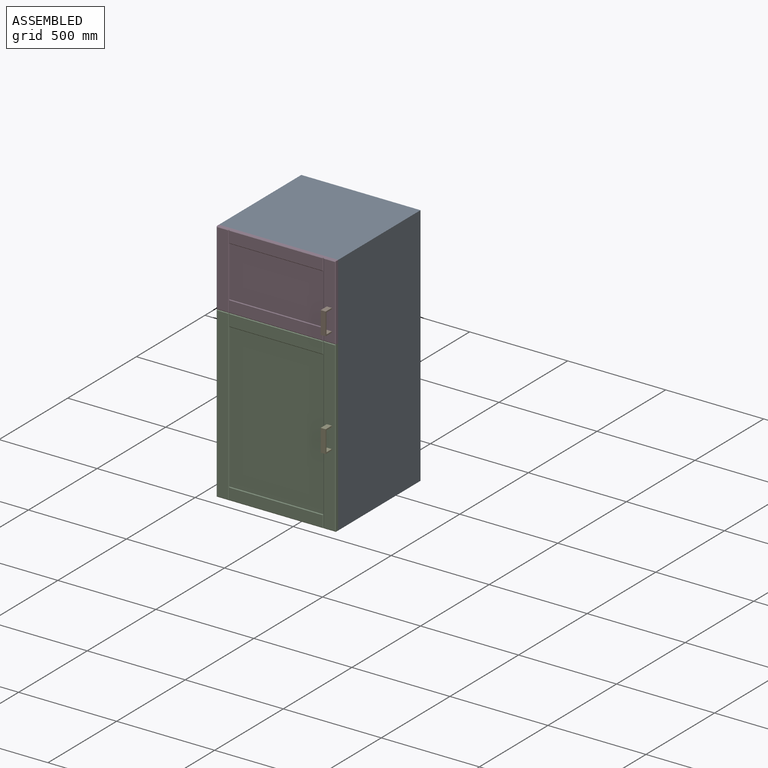
[diagram: assembled view]
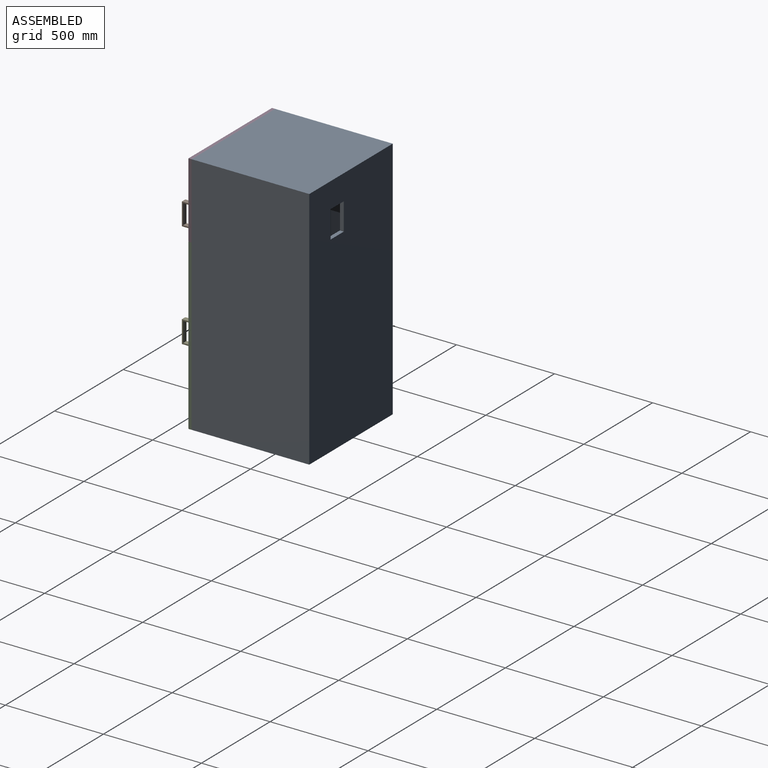
[diagram: assembled view, second angle]
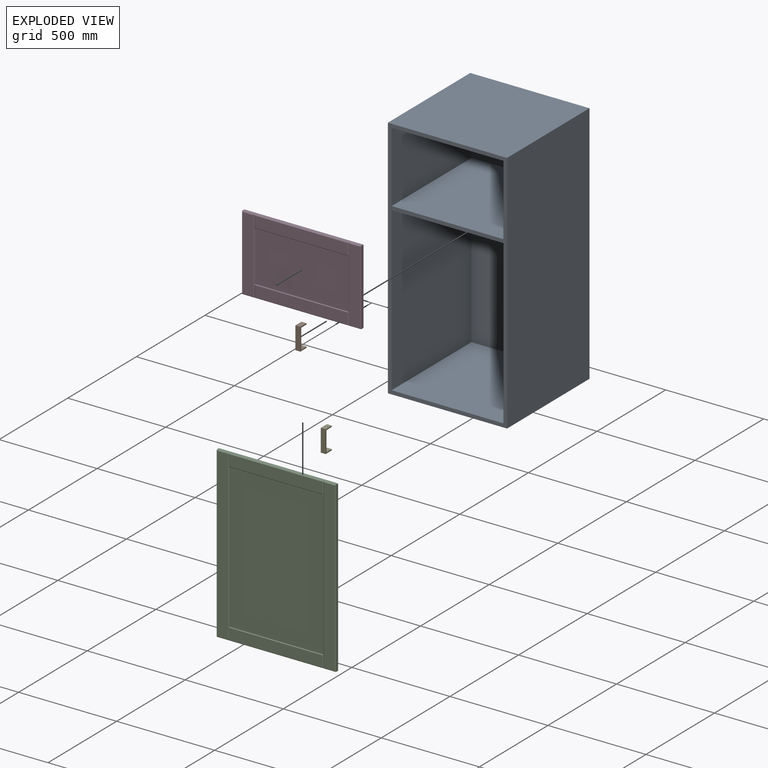
[diagram: exploded view]
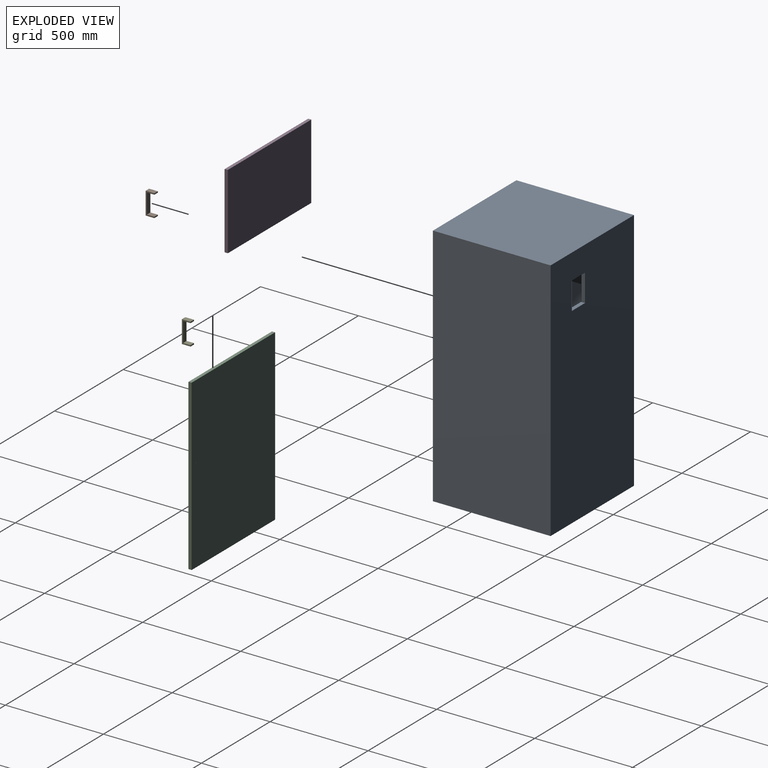
[diagram: exploded view, second angle]
ASSEMBLY  parts=5 mates=4
PART A: 20 faces, bbox 608x600.1x1247.8 mm
  f0: plane 569.91x360.36mm, normal (0,-1,0), area 192068.7mm2, adj f2,f3,f9,f15,f16,f17,f18,f19
  f1: plane 1247.78x608.01mm, normal (0,1,0), area 745356.4mm2, adj f5,f6,f7,f8,f16,f17,f18,f19
  f2: plane 581.03x360.36mm, normal (1,0,0), area 209379.6mm2, adj f0,f4,f9,f15
  f3: plane 581.03x360.36mm, normal (-1,0,0), area 209379.6mm2, adj f0,f4,f9,f15
  f4: plane 1247.78x608.01mm, normal (0,-1,0), area 80110.7mm2, adj f2,f3,f5,f6,f7,f8,f9,f10
  f5: plane 608.01x600.08mm, normal (0,0,1), area 364853.1mm2, adj f1,f4,f6,f8
  f6: plane 1247.78x600.08mm, normal (-1,0,0), area 748758.6mm2, adj f1,f4,f5,f7
  f7: plane 608.01x600.08mm, normal (0,0,-1), area 364853.1mm2, adj f1,f4,f6,f8
  f8: plane 1247.78x600.08mm, normal (1,0,0), area 748758.6mm2, adj f1,f4,f5,f7
  f9: plane 581.03x569.91mm, normal (0,0,-1), area 331133.4mm2, adj f0,f2,f3,f4
  f10: plane 830.26x581.03mm, normal (1,0,0), area 482403.3mm2, adj f4,f11,f13,f14
  f11: plane 581.03x569.91mm, normal (0,0,1), area 331133.4mm2, adj f4,f10,f12,f13
  f12: plane 830.26x581.03mm, normal (-1,0,0), area 482403.3mm2, adj f4,f11,f13,f14
  f13: plane 830.26x569.91mm, normal (0,-1,0), area 473177mm2, adj f10,f11,f12,f14
  f14: plane 581.03x569.91mm, normal (0,0,-1), area 331133.4mm2, adj f4,f10,f12,f13
  f15: plane 581.03x569.91mm, normal (0,0,1), area 331133.4mm2, adj f0,f2,f3,f4
  f16: plane 139.7x19.05mm, normal (1,0,0), area 2661.3mm2, adj f0,f1,f17,f19
  f17: plane 95.25x19.05mm, normal (0,0,1), area 1814.5mm2, adj f0,f1,f16,f18
  f18: plane 139.7x19.05mm, normal (-1,0,0), area 2661.3mm2, adj f0,f1,f17,f19
  f19: plane 95.25x19.05mm, normal (0,0,-1), area 1814.5mm2, adj f0,f1,f16,f18
PART B: 10 faces, bbox 25.4x44.5x114.3 mm
  f0: plane 25.4x6.35mm, normal (0,1,0), area 161.3mm2, adj f1,f7,f8,f9
  f1: plane 44.45x25.4mm, normal (0,0,1), area 1129mm2, adj f0,f2,f8,f9
  f2: plane 114.3x25.4mm, normal (0,-1,0), area 2903.2mm2, adj f1,f3,f8,f9
  f3: plane 44.45x25.4mm, normal (0,0,-1), area 1129mm2, adj f2,f4,f8,f9
  f4: plane 25.4x6.35mm, normal (0,1,0), area 161.3mm2, adj f3,f5,f8,f9
  f5: plane 38.1x25.4mm, normal (0,0,1), area 967.7mm2, adj f4,f6,f8,f9
  f6: plane 101.6x25.4mm, normal (0,1,0), area 2580.6mm2, adj f5,f7,f8,f9
  f7: plane 38.1x25.4mm, normal (0,0,-1), area 967.7mm2, adj f0,f6,f8,f9
  f8: plane 114.3x44.45mm, normal (1,0,0), area 1209.7mm2, adj f0,f1,f2,f3,f4,f5,f6,f7
  f9: plane 114.3x44.45mm, normal (-1,0,0), area 1209.7mm2, adj f0,f1,f2,f3,f4,f5,f6,f7
PART C: 27 faces, bbox 608x19.1x863.6 mm
  f0: plane 608.01x15.88mm, normal (0,0,-1), area 9652.2mm2, adj f1,f4,f7,f10,f20,f24
  f1: plane 863.6x15.88mm, normal (1,0,0), area 13709.6mm2, adj f0,f2,f4,f5
  f2: plane 608.01x15.88mm, normal (0,0,1), area 9652.2mm2, adj f1,f4,f6,f15,f20,f23
  f3: plane 857.25x57.15mm, normal (0,-1,0), area 48983.9mm2, adj f5,f6,f7,f8,f26
  f4: plane 863.6x608.01mm, normal (0,1,0), area 525071.7mm2, adj f0,f1,f2,f20,f26
  f5: plane 863.6x3.18mm, normal (0.71,-0.71,0), area 3863.4mm2, adj f1,f3,f6,f7
  f6: plane 63.5x3.18mm, normal (0,-0.71,0.71), area 270.9mm2, adj f2,f3,f5,f8
  f7: plane 63.5x3.18mm, normal (0,-0.71,-0.71), area 270.9mm2, adj f0,f3,f5,f8
  f8: plane 863.6x3.18mm, normal (-0.71,-0.71,0), area 3863.4mm2, adj f3,f6,f7,f12,f17,f19
  f9: plane 474.66x57.15mm, normal (0,-1,0), area 27127mm2, adj f10,f11,f12,f13
  f10: plane 481.01x3.18mm, normal (0,-0.71,-0.71), area 2145.6mm2, adj f0,f9,f11,f12
  f11: plane 63.5x3.18mm, normal (-0.71,-0.71,0), area 270.9mm2, adj f9,f10,f13,f25
  f12: plane 63.5x3.18mm, normal (0.71,-0.71,0), area 270.9mm2, adj f8,f9,f10,f13
  f13: plane 481.01x3.18mm, normal (0,-0.71,0.71), area 2145.6mm2, adj f9,f11,f12,f19
  f14: plane 474.66x57.15mm, normal (0,-1,0), area 27127mm2, adj f15,f16,f17,f18
  f15: plane 481.01x3.18mm, normal (0,-0.71,0.71), area 2145.6mm2, adj f2,f14,f16,f17
  f16: plane 63.5x3.18mm, normal (-0.71,-0.71,0), area 270.9mm2, adj f14,f15,f18,f25
  f17: plane 63.5x3.18mm, normal (0.71,-0.71,0), area 270.9mm2, adj f8,f14,f15,f18
  f18: plane 481.01x3.18mm, normal (0,-0.71,-0.71), area 2145.6mm2, adj f14,f16,f17,f19
  f19: plane 736.6x481.01mm, normal (0,-1,0), area 354313.8mm2, adj f8,f13,f18,f25
  f20: plane 863.6x15.88mm, normal (-1,0,0), area 13709.6mm2, adj f0,f2,f4,f22
  f21: plane 857.25x57.15mm, normal (0,-1,0), area 48991.8mm2, adj f22,f23,f24,f25
  f22: plane 863.6x3.18mm, normal (-0.71,-0.71,0), area 3863.4mm2, adj f20,f21,f23,f24
  f23: plane 63.5x3.18mm, normal (0,-0.71,0.71), area 270.9mm2, adj f2,f21,f22,f25
  f24: plane 63.5x3.18mm, normal (0,-0.71,-0.71), area 270.9mm2, adj f0,f21,f22,f25
  f25: plane 863.6x3.18mm, normal (0.71,-0.71,0), area 3863.4mm2, adj f11,f16,f19,f21,f23,f24
  f26: cylinder r=1.59mm len=19.05mm, axis (0,-1,0), area 190mm2, adj f3,f4
PART D: 26 faces, bbox 608x19.1x384.2 mm
  f0: plane 608.01x15.88mm, normal (0,0,-1), area 9652.2mm2, adj f1,f4,f7,f10,f20,f24
  f1: plane 384.18x15.88mm, normal (1,0,0), area 6098.8mm2, adj f0,f2,f4,f5
  f2: plane 608.01x15.88mm, normal (0,0,1), area 9652.2mm2, adj f1,f4,f6,f15,f20,f23
  f3: plane 377.83x57.15mm, normal (0,-1,0), area 21592.7mm2, adj f5,f6,f7,f8
  f4: plane 608.01x384.18mm, normal (0,1,0), area 233583.2mm2, adj f0,f1,f2,f20
  f5: plane 384.18x3.18mm, normal (0.71,-0.71,0), area 1710.7mm2, adj f1,f3,f6,f7
  f6: plane 63.5x3.18mm, normal (0,-0.71,0.71), area 270.9mm2, adj f2,f3,f5,f8
  f7: plane 63.5x3.18mm, normal (0,-0.71,-0.71), area 270.9mm2, adj f0,f3,f5,f8
  f8: plane 384.18x3.18mm, normal (-0.71,-0.71,0), area 1710.7mm2, adj f3,f6,f7,f12,f17,f19
  f9: plane 474.66x57.15mm, normal (0,-1,0), area 27127mm2, adj f10,f11,f12,f13
  f10: plane 481.01x3.18mm, normal (0,-0.71,-0.71), area 2145.6mm2, adj f0,f9,f11,f12
  f11: plane 63.5x3.18mm, normal (-0.71,-0.71,0), area 270.9mm2, adj f9,f10,f13,f25
  f12: plane 63.5x3.18mm, normal (0.71,-0.71,0), area 270.9mm2, adj f8,f9,f10,f13
  f13: plane 481.01x3.18mm, normal (0,-0.71,0.71), area 2145.6mm2, adj f9,f11,f12,f19
  f14: plane 474.66x57.15mm, normal (0,-1,0), area 27127mm2, adj f15,f16,f17,f18
  f15: plane 481.01x3.18mm, normal (0,-0.71,0.71), area 2145.6mm2, adj f2,f14,f16,f17
  f16: plane 63.5x3.18mm, normal (-0.71,-0.71,0), area 270.9mm2, adj f14,f15,f18,f25
  f17: plane 63.5x3.18mm, normal (0.71,-0.71,0), area 270.9mm2, adj f8,f14,f15,f18
  f18: plane 481.01x3.18mm, normal (0,-0.71,-0.71), area 2145.6mm2, adj f14,f16,f17,f19
  f19: plane 481.01x257.18mm, normal (0,-1,0), area 123704.4mm2, adj f8,f13,f18,f25
  f20: plane 384.18x15.88mm, normal (-1,0,0), area 6098.8mm2, adj f0,f2,f4,f22
  f21: plane 377.83x57.15mm, normal (0,-1,0), area 21592.7mm2, adj f22,f23,f24,f25
  f22: plane 384.18x3.18mm, normal (-0.71,-0.71,0), area 1710.7mm2, adj f20,f21,f23,f24
  f23: plane 63.5x3.18mm, normal (0,-0.71,0.71), area 270.9mm2, adj f2,f21,f22,f25
  f24: plane 63.5x3.18mm, normal (0,-0.71,-0.71), area 270.9mm2, adj f0,f21,f22,f25
  f25: plane 384.18x3.18mm, normal (0.71,-0.71,0), area 1710.7mm2, adj f11,f16,f19,f21,f23,f24
PART E: same geometry as B
PLACE A rot(axis=(0,1,0),0deg) t=(-608.01,-600.08,0)mm fixed
PLACE B rot(axis=(0,1,0),0deg) t=(-31.75,-619.12,1022.35)mm
PLACE C rot(axis=(0,1,0),0deg) t=(-1228.41,-600.08,381)mm
PLACE D rot(axis=(0,1,0),0deg) t=(-2229.01,-600.08,1244.6)mm
PLACE E rot(axis=(0,1,-0.06),0deg) t=(-31.75,-619.12,479.43)mm
MATE fastened C.f4 <-> A.f4  axis (0,1,0) through (-608.01,-600.08,0)mm
MATE fastened A.f4 <-> D.f4  axis (0,-1,0) through (-608.01,-600.08,1247.78)mm
MATE fastened B.f4 <-> D.f3  axis (0,1,0) through (-31.75,-619.12,917.58)mm
MATE fastened C.f26 <-> E.f0  axis (0,-1,0) through (-31.75,-619.12,482.6)mm
